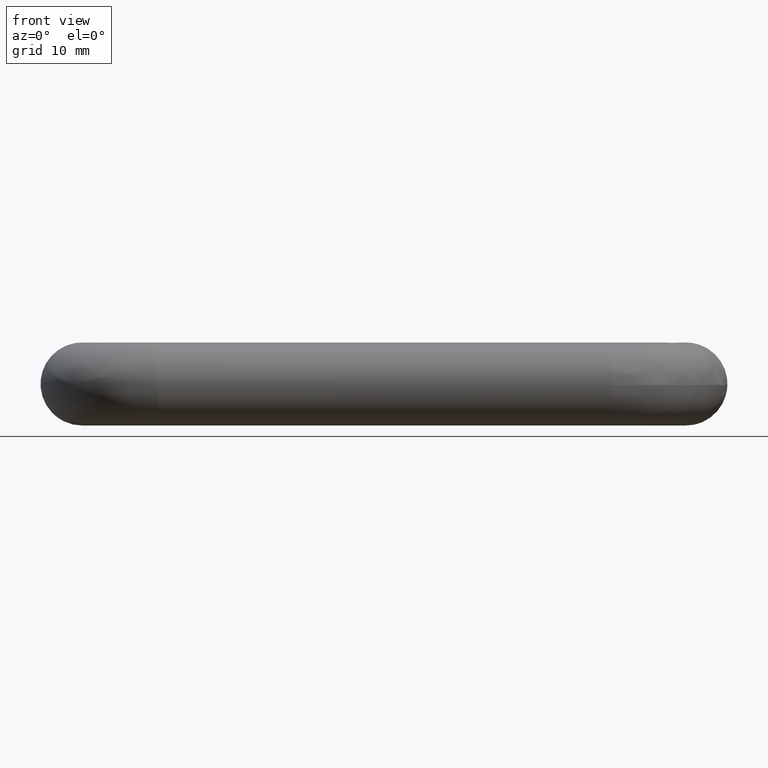
[diagram: clean part render]
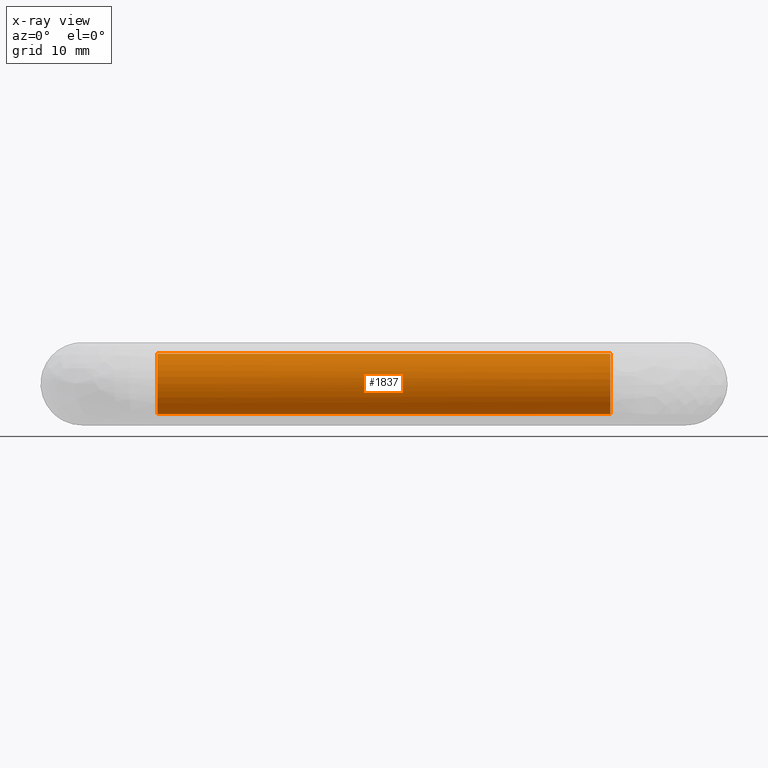
[diagram: x-ray — body ghosted, one internal face saturated and labeled with its STEP entity id]
A machine part, front view, then the same camera in x-ray: the body is ghosted and one INTERNAL B-rep face — a face not visible from any outside direction — is saturated and labeled: STEP entity #1837.
In plain terms, the highlighted face is a freeform B-spline surface patch.
Its self-contained STEP definition (entity closure, byte-faithful):
#1610=CARTESIAN_POINT('',(69.999999999999986,-23.297639834008589,2.949109956142314));
#1611=VERTEX_POINT('',#1610);
#1612=CARTESIAN_POINT('',(70.000000000204011,-23.050889768665179,-2.702359865477034));
#1613=VERTEX_POINT('',#1612);
#1629=CARTESIAN_POINT('',(9.999999206119156,-23.297640706400390,2.949110755540757));
#1630=VERTEX_POINT('',#1629);
#1631=CARTESIAN_POINT('',(9.999999206119156,-23.297640706400390,2.949110755540757));
#1632=CARTESIAN_POINT('',(69.999999999999986,-23.297639834008589,2.949109956142314));
#1633=QUASI_UNIFORM_CURVE('',1,(#1631,#1632),.UNSPECIFIED.,.F.,.U.);
#1634=EDGE_CURVE('',#1630,#1611,#1633,.T.);
#1666=CARTESIAN_POINT('',(9.999999912984366,-23.050889737044180,-2.702359786942815));
#1667=VERTEX_POINT('',#1666);
#1681=CARTESIAN_POINT('',(9.999999912984366,-23.050889737044180,-2.702359786942815));
#1682=CARTESIAN_POINT('',(70.000000000204011,-23.050889768665179,-2.702359865477034));
#1683=QUASI_UNIFORM_CURVE('',1,(#1681,#1682),.UNSPECIFIED.,.F.,.U.);
#1684=EDGE_CURVE('',#1667,#1613,#1683,.T.);
#1689=CARTESIAN_POINT('',(8.499998480428738,-23.297639169508560,2.949109347240495));
#1690=CARTESIAN_POINT('',(8.499998480428738,-26.246748516749047,5.651470177703135));
#1691=CARTESIAN_POINT('',(8.499998480428738,-28.949109347211699,2.702360830462640));
#1692=CARTESIAN_POINT('',(8.499998480428738,-31.651470177674330,-0.246748516777855));
#1693=CARTESIAN_POINT('',(8.499998480428738,-28.702360830433840,-2.949109347240495));
#1694=CARTESIAN_POINT('',(8.499998480428738,-25.753251483193349,-5.651470177703135));
#1695=CARTESIAN_POINT('',(8.499998480428738,-23.050890652730711,-2.702360830462640));
#1696=CARTESIAN_POINT('',(71.537500038775335,-23.297639169508560,2.949109347240495));
#1697=CARTESIAN_POINT('',(71.537500038775335,-26.246748516749047,5.651470177703135));
#1698=CARTESIAN_POINT('',(71.537500038775335,-28.949109347211699,2.702360830462640));
#1699=CARTESIAN_POINT('',(71.537500038775335,-31.651470177674330,-0.246748516777855));
#1700=CARTESIAN_POINT('',(71.537500038775335,-28.702360830433840,-2.949109347240495));
#1701=CARTESIAN_POINT('',(71.537500038775335,-25.753251483193349,-5.651470177703135));
#1702=CARTESIAN_POINT('',(71.537500038775335,-23.050890652730711,-2.702360830462640));
#1710=(BOUNDED_SURFACE()B_SPLINE_SURFACE(2,1,((#1689,#1696),(#1690,#1697),(#1691,#1698),(#1692,#1699),(#1693,#1700),(#1694,#1701),(#1695,#1702)),.UNSPECIFIED.,.F.,.F.,.U.)B_SPLINE_SURFACE_WITH_KNOTS((3,2,2,3),(2,2),(0.0,6.627416997969523,13.254833995939050,19.882250993908571),(0.0,63.037501558346598),.UNSPECIFIED.)GEOMETRIC_REPRESENTATION_ITEM()RATIONAL_B_SPLINE_SURFACE(((1.0,1.0),(0.707106781186548,0.707106781186548),(1.0,1.0),(0.707106781186548,0.707106781186548),(1.0,1.0),(0.707106781186548,0.707106781186548),(1.0,1.0)))REPRESENTATION_ITEM('')SURFACE());
#1711=CARTESIAN_POINT('',(70.000000000766875,-25.949735839066811,-3.999684176798035));
#1712=VERTEX_POINT('',#1711);
#1713=CARTESIAN_POINT('',(70.000000000204011,-23.050889768665176,-2.702359865477034));
#1714=CARTESIAN_POINT('',(70.000000000430973,-24.219745900866659,-3.977943336485390));
#1715=CARTESIAN_POINT('',(70.000000000766875,-25.949735839066811,-3.999684176798035));
#1723=(BOUNDED_CURVE()B_SPLINE_CURVE(2,(#1713,#1714,#1715),.UNSPECIFIED.,.F.,.U.)B_SPLINE_CURVE_WITH_KNOTS((3,3),(0.868415159683186,0.997784295801165),.UNSPECIFIED.)CURVE()GEOMETRIC_REPRESENTATION_ITEM()RATIONAL_B_SPLINE_CURVE((0.853959786935677,0.845975516823000,0.994854295366522))REPRESENTATION_ITEM(''));
#1724=EDGE_CURVE('',#1613,#1712,#1723,.T.);
#1725=ORIENTED_EDGE('',*,*,#1724,.F.);
#1726=ORIENTED_EDGE('',*,*,#1684,.F.);
#1727=CARTESIAN_POINT('',(10.0,-29.999999999971202,0.0));
#1728=VERTEX_POINT('',#1727);
#1729=CARTESIAN_POINT('',(9.999999912984366,-23.050889737044177,-2.702359786942816));
#1730=CARTESIAN_POINT('',(10.0,-24.239957140505766,-4.000000000000000));
#1731=CARTESIAN_POINT('',(10.0,-25.999999999971202,-4.0));
#1732=CARTESIAN_POINT('',(10.000000000000002,-29.999999999971195,-4.000000000000000));
#1733=CARTESIAN_POINT('',(10.0,-29.999999999971202,0.0));
#1741=(BOUNDED_CURVE()B_SPLINE_CURVE(2,(#1729,#1730,#1731,#1732,#1733),.UNSPECIFIED.,.F.,.U.)B_SPLINE_CURVE_WITH_KNOTS((3,2,3),(0.618415162548195,0.750000000000000,1.0),.UNSPECIFIED.)CURVE()GEOMETRIC_REPRESENTATION_ITEM()RATIONAL_B_SPLINE_CURVE((0.853959786582039,0.845838773646783,1.0,0.707106781186548,1.0))REPRESENTATION_ITEM(''));
#1742=EDGE_CURVE('',#1667,#1728,#1741,.T.);
#1743=ORIENTED_EDGE('',*,*,#1742,.T.);
#1744=CARTESIAN_POINT('',(9.999998517510157,-25.949733636309109,3.999684149114696));
#1745=VERTEX_POINT('',#1744);
#1746=CARTESIAN_POINT('',(10.0,-29.999999999971202,0.0));
#1747=CARTESIAN_POINT('',(9.999999268012200,-29.999999999971209,3.999999999999701));
#1748=CARTESIAN_POINT('',(9.999998526767278,-25.999999999971209,3.999999999999399));
#1749=CARTESIAN_POINT('',(9.999998522109634,-25.974865825808774,3.999999999999397));
#1750=CARTESIAN_POINT('',(9.999998517510157,-25.949733636309105,3.999684149114696));
#1758=(BOUNDED_CURVE()B_SPLINE_CURVE(2,(#1746,#1747,#1748,#1749,#1750),.UNSPECIFIED.,.F.,.U.)B_SPLINE_CURVE_WITH_KNOTS((3,2,3),(0.0,0.250000000000000,0.252215800994319),.UNSPECIFIED.)CURVE()GEOMETRIC_REPRESENTATION_ITEM()RATIONAL_B_SPLINE_CURVE((1.0,0.707106781186548,1.0,0.997404027658096,0.994854072580963))REPRESENTATION_ITEM(''));
#1759=EDGE_CURVE('',#1728,#1745,#1758,.T.);
#1760=ORIENTED_EDGE('',*,*,#1759,.T.);
#1761=CARTESIAN_POINT('',(9.999998517510157,-25.949733636309116,3.999684149114696));
#1762=CARTESIAN_POINT('',(9.999998803993160,-24.423205051240465,3.980499373983352));
#1763=CARTESIAN_POINT('',(9.999999206119155,-23.297640706400387,2.949110755540757));
#1771=(BOUNDED_CURVE()B_SPLINE_CURVE(2,(#1761,#1762,#1763),.UNSPECIFIED.,.F.,.U.)B_SPLINE_CURVE_WITH_KNOTS((3,3),(0.252215800994318,0.368415130413071),.UNSPECIFIED.)CURVE()GEOMETRIC_REPRESENTATION_ITEM()RATIONAL_B_SPLINE_CURVE((0.994854072580964,0.861131292073822,0.853959790548611))REPRESENTATION_ITEM(''));
#1772=EDGE_CURVE('',#1745,#1630,#1771,.T.);
#1773=ORIENTED_EDGE('',*,*,#1772,.T.);
#1774=ORIENTED_EDGE('',*,*,#1634,.T.);
#1775=CARTESIAN_POINT('',(70.0,-25.999999999971202,4.0));
#1776=VERTEX_POINT('',#1775);
#1777=CARTESIAN_POINT('',(70.0,-25.999999999971202,4.0));
#1778=CARTESIAN_POINT('',(69.999999999999986,-24.444486110146975,4.000000000000000));
#1779=CARTESIAN_POINT('',(70.0,-23.297639834008585,2.949109956142315));
#1787=(BOUNDED_CURVE()B_SPLINE_CURVE(2,(#1777,#1778,#1779),.UNSPECIFIED.,.F.,.U.)B_SPLINE_CURVE_WITH_KNOTS((3,3),(0.500000000000000,0.618415141054700),.UNSPECIFIED.)CURVE()GEOMETRIC_REPRESENTATION_ITEM()RATIONAL_B_SPLINE_CURVE((1.0,0.861268032720960,0.853959789235068))REPRESENTATION_ITEM(''));
#1788=EDGE_CURVE('',#1776,#1611,#1787,.T.);
#1789=ORIENTED_EDGE('',*,*,#1788,.F.);
#1790=CARTESIAN_POINT('',(70.000000000001307,-29.990262695331619,-0.278933006320564));
#1791=VERTEX_POINT('',#1790);
#1792=CARTESIAN_POINT('',(70.000000000001307,-29.990262695331616,-0.278933006320564));
#1793=CARTESIAN_POINT('',(70.0,-29.999999999971202,-0.139636463517711));
#1794=CARTESIAN_POINT('',(70.0,-29.999999999971202,0.0));
#1795=CARTESIAN_POINT('',(70.0,-29.999999999971195,4.000000000000000));
#1796=CARTESIAN_POINT('',(70.0,-25.999999999971202,4.0));
#1804=(BOUNDED_CURVE()B_SPLINE_CURVE(2,(#1792,#1793,#1794,#1795,#1796),.UNSPECIFIED.,.F.,.U.)B_SPLINE_CURVE_WITH_KNOTS((3,2,3),(0.237833686533514,0.250000000000000,0.500000000000000),.UNSPECIFIED.)CURVE()GEOMETRIC_REPRESENTATION_ITEM()RATIONAL_B_SPLINE_CURVE((0.972879876383640,0.985746277150830,1.0,0.707106781186548,1.0))REPRESENTATION_ITEM(''));
#1805=EDGE_CURVE('',#1791,#1776,#1804,.T.);
#1806=ORIENTED_EDGE('',*,*,#1805,.F.);
#1807=CARTESIAN_POINT('',(70.0,-25.999999999971202,-4.0));
#1808=VERTEX_POINT('',#1807);
#1809=CARTESIAN_POINT('',(70.0,-25.999999999971202,-4.0));
#1810=CARTESIAN_POINT('',(70.0,-29.730147389002454,-4.000000000000001));
#1811=CARTESIAN_POINT('',(70.000000000001307,-29.990262695331623,-0.278933006320564));
#1819=(BOUNDED_CURVE()B_SPLINE_CURVE(2,(#1809,#1810,#1811),.UNSPECIFIED.,.F.,.U.)B_SPLINE_CURVE_WITH_KNOTS((3,3),(0.0,0.237833686533514),.UNSPECIFIED.)CURVE()GEOMETRIC_REPRESENTATION_ITEM()RATIONAL_B_SPLINE_CURVE((1.0,0.721360504035717,0.972879876383640))REPRESENTATION_ITEM(''));
#1820=EDGE_CURVE('',#1808,#1791,#1819,.T.);
#1821=ORIENTED_EDGE('',*,*,#1820,.F.);
#1822=CARTESIAN_POINT('',(70.000000000766875,-25.949735839066808,-3.999684176798035));
#1823=CARTESIAN_POINT('',(70.0,-25.974866926632505,-4.000000000000000));
#1824=CARTESIAN_POINT('',(70.0,-25.999999999971202,-4.0));
#1832=(BOUNDED_CURVE()B_SPLINE_CURVE(2,(#1822,#1823,#1824),.UNSPECIFIED.,.F.,.U.)B_SPLINE_CURVE_WITH_KNOTS((3,3),(0.997784295801164,1.0),.UNSPECIFIED.)CURVE()GEOMETRIC_REPRESENTATION_ITEM()RATIONAL_B_SPLINE_CURVE((0.994854295366520,0.997404141061057,1.0))REPRESENTATION_ITEM(''));
#1833=EDGE_CURVE('',#1712,#1808,#1832,.T.);
#1834=ORIENTED_EDGE('',*,*,#1833,.F.);
#1835=EDGE_LOOP('',(#1725,#1726,#1743,#1760,#1773,#1774,#1789,#1806,#1821,#1834));
#1836=FACE_OUTER_BOUND('',#1835,.T.);
#1837=ADVANCED_FACE('',(#1836),#1710,.F.);